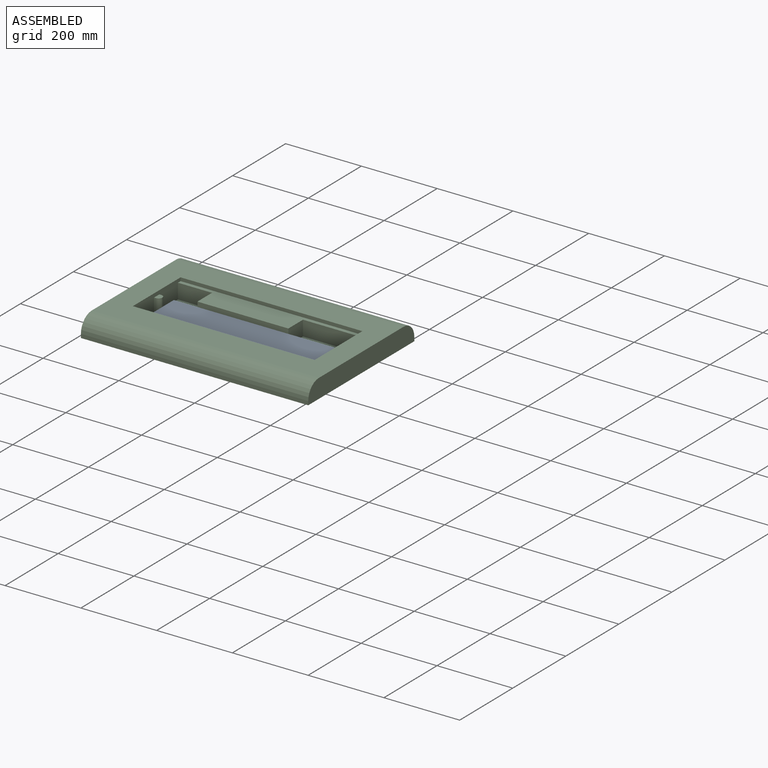
[diagram: assembled view]
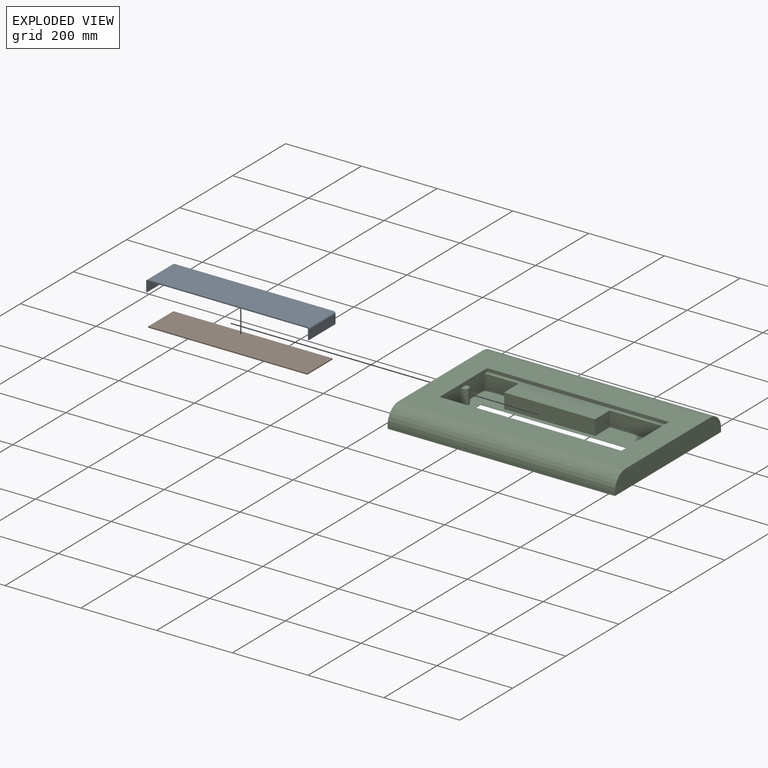
[diagram: exploded view]
GUIDED TOUR — MATED ASSEMBLY (Onshape document 325e85852f666d35549590d1, AutoMate assembly 325e85852f666d35549590d1_365f95b9f09e71062bb9f5e0_78d972769d479ff531b1773d_default)

This assembly has 3 components, labeled P0..P2 below (a component is one placed occurrence of a part; the same part can appear more than once), held together by 6 mates. A mate is a constraint between two components; its type names the relative motion it leaves free:
  PLANAR — leaves sliding in the plane through the listed point (normal = the listed direction) and rotation about that normal free.
Axis/direction vectors are unit vectors and 'through' points are millimeter coordinates, both in the assembly's world frame.

MATES
  1. PLANAR "Planar 6": P0 <-> P1, direction (-1.000, 0.000, 0.000) through (215.00, 20.00, 13.50) mm
  2. PLANAR "Planar 4": P0 <-> P2, direction (0.000, 0.000, -1.000) through (216.50, -30.00, 1.00) mm
  3. PLANAR "Planar 3": P1 <-> P2, direction (0.000, -1.000, 0.000) through (0.00, -75.00, 2.50) mm
  4. PLANAR "Planar 2": P1 <-> P2, direction (-1.000, 0.000, 0.000) through (-210.00, -27.50, 2.50) mm
  5. PLANAR "Planar 1": P1 <-> P2, direction (0.000, 0.000, -1.000) through (0.00, -27.50, 1.00) mm
  6. PLANAR "Planar 5": P0 <-> P2, direction (0.000, -1.000, 0.000) through (3.00, -80.00, 29.50) mm

ASSEMBLY ORDER
  1. P1 — the base component [order verified]
  2. P0 [order verified]
  3. P2 [order verified]
Order-tag legend:
  [order verified] — this step's position reverses a verified removal order: the component was checked to insert without passing through the ones already placed.

Of the 3 components, 2 carry the full construction recipe — the FeatureScript program that regenerates the part's solid from scratch; the rest are supplied as boundary geometry only.
Each toured component is shown spotlighted twice — in the assembled view, then in the exploded view, where a leader line traces a displaced component back to its assembled socket (saturated green if recipe-attached, orange if geometry-only; every other component desaturated gray) — followed by its recipe or geometry summary and the mates that hold it.
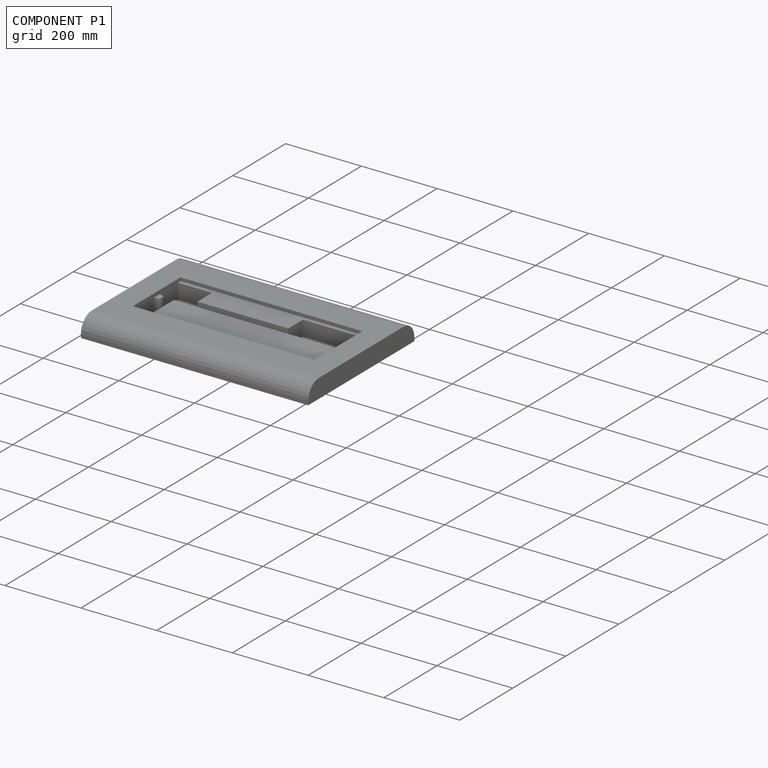
[diagram: component P1 — assembled]
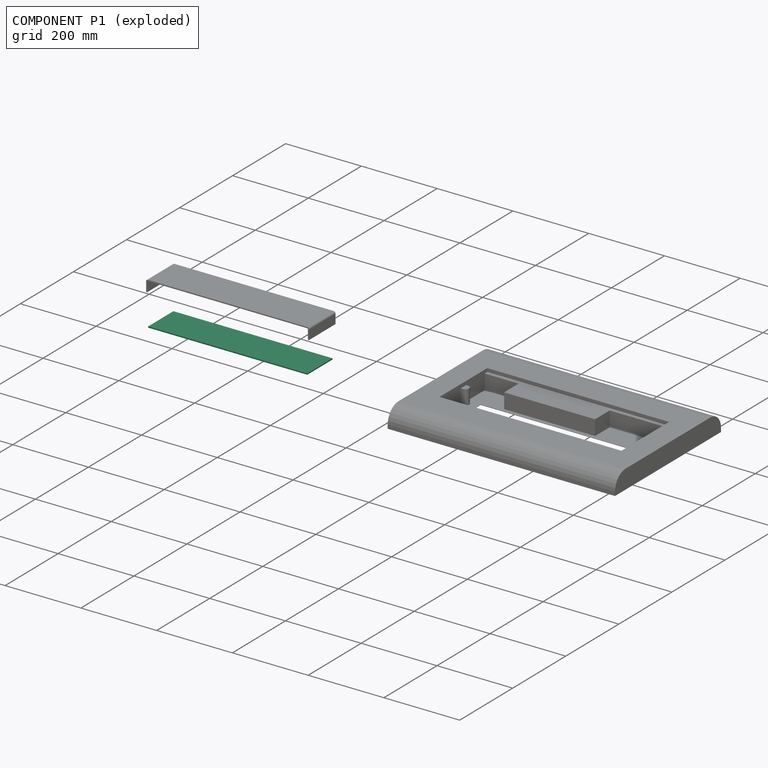
[diagram: component P1 — exploded]
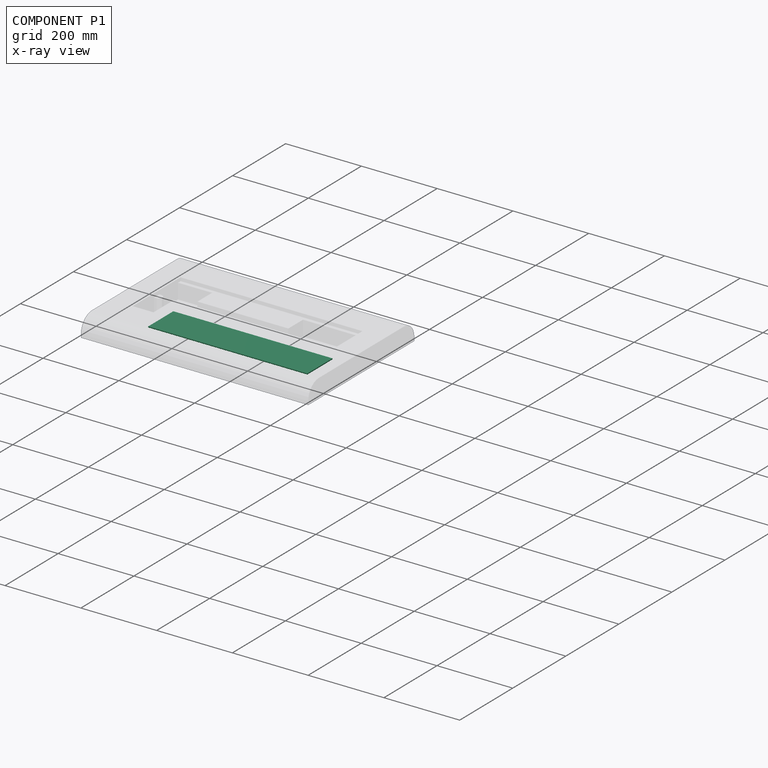
[diagram: component P1 — x-ray view]
COMPONENT P1 — recipe-attached (CADFS 00701564, mesh-verified: the recipe's output STEP matches this component's geometry to below the mesh-comparison resolution (tessellation chordal tolerance ~0.646 mm)).
Held by: PLANAR mate "Planar 6" to P0; PLANAR mate "Planar 3" to P2; PLANAR mate "Planar 2" to P2; PLANAR mate "Planar 1" to P2.
Construction recipe (FeatureScript — the CAD program that rebuilds this solid; sketch coordinates are in the units given by the * unit suffixes, e.g. mm):

FeatureScript 1511;
import(path : "onshape/std/geometry.fs", version : "1511.0");
import(path : "onshape/std/common.fs", version : "1511.0");
const mm = millimeter;
const VERTEX = EntityType.VERTEX;
const EDGE = EntityType.EDGE;
const FACE = EntityType.FACE;
const BODY = EntityType.BODY;
function v(x, y){return vector(x, y);}
function OD(order){return orderDisambiguation(order);}
function OSD(set){return originalSetDisambiguation(set);}
function TD(topology){return topologyDisambiguation(topology);}
function TDD(query){return trueDependencyDisambiguation(query);}
function sQuery(a, b, c) {return sketchEntityQuery(a, b, c);}

annotation { "Feature Type Name" : "Feature", "Feature Type Description" : "" }
export const myFeature = defineFeature(function(context is Context, id is Id, definition is map)
    precondition{}
    {
        {
            var Q0;
            Q0=qCreatedBy(makeId("Top.planeOp"),FACE);
            var sketch = newSketch(context, id + "F0", { "sketchPlane" : qUnion([Q0])});
            skLineSegment(sketch, "E0.bottom", {"start": v(210, 47.5) * mm, "end": v(-210, 47.5) * mm});
            skLineSegment(sketch, "E0.top", {"start": v(210, -47.5) * mm, "end": v(-210, -47.5) * mm});
            skLineSegment(sketch, "E0.left", {"start": v(210, 47.5) * mm, "end": v(210, -47.5) * mm});
            skLineSegment(sketch, "E0.right", {"start": v(-210, 47.5) * mm, "end": v(-210, -47.5) * mm});
            skPoint(sketch, "E0.middle", {"position": v(0, 0) * mm});
            skSolve(sketch);
        }
        {
            var Q0;
            Q0=makeQuery(id+"F0.imprint","IMPRINT",FACE,{"disambiguationData":[TD([[makeQuery(id+"F0.imprint","IMPRINT",EDGE,{"derivedFrom":sQuery(id+"F0.wireOp",EDGE,"E0.bottom")}),1.0]])]});
            extrude(context, id + "F1", {"entities" : qUnion([Q0]), "depth" : 3 * mm, "offsetDistance" : 25 * mm});
        }
    });
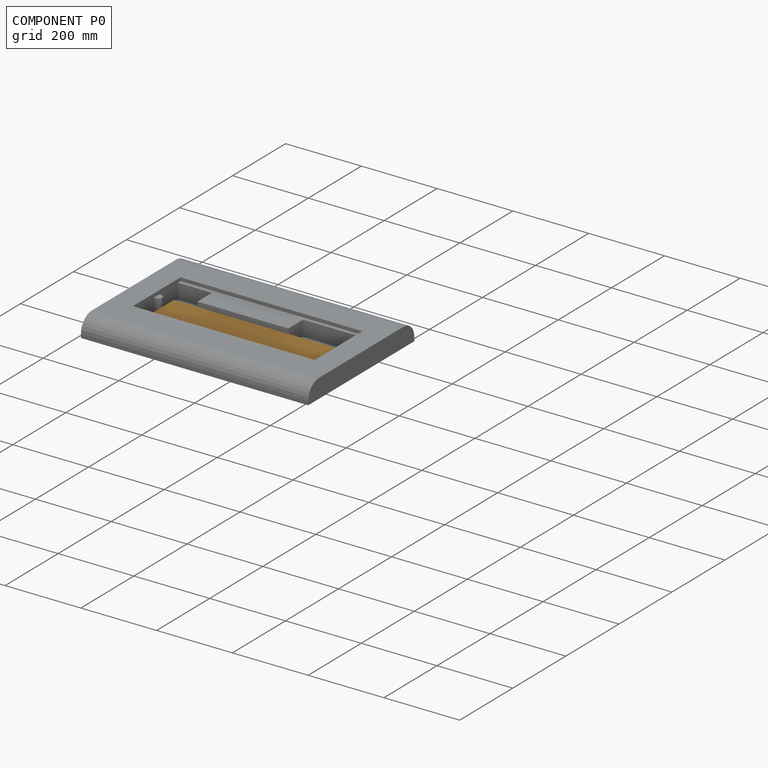
[diagram: component P0 — assembled]
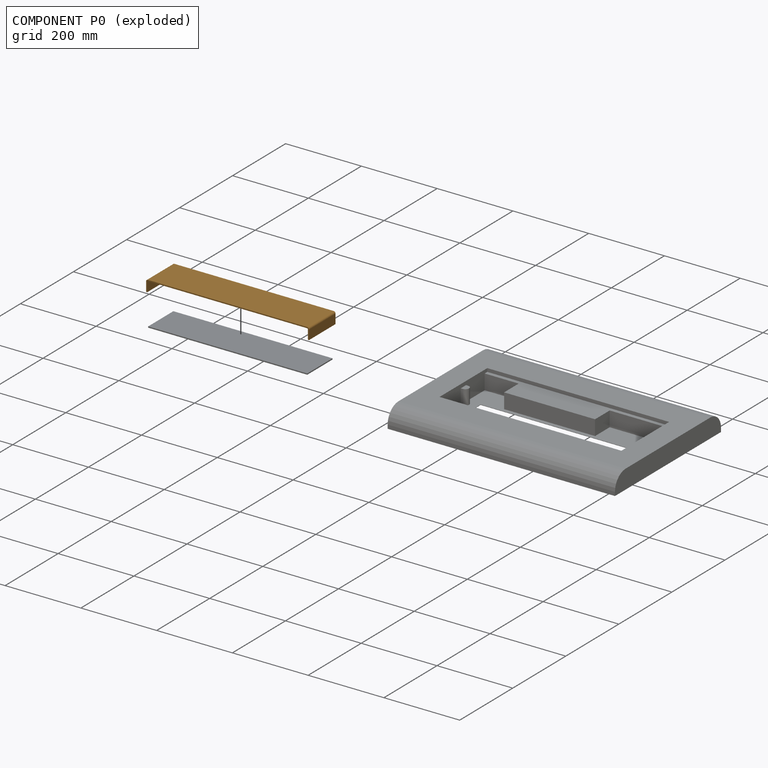
[diagram: component P0 — exploded]
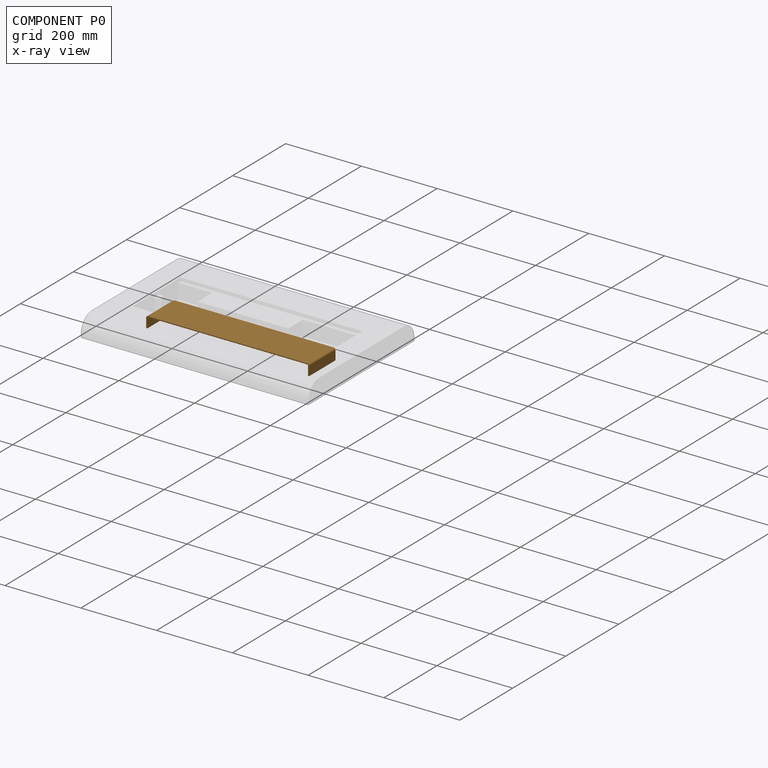
[diagram: component P0 — x-ray view]
COMPONENT P0 — geometry summary (no construction recipe available for this part):
  bounding box: 430.0 x 100.0 x 30.0 mm
  B-rep topology: 1 solid, 22 faces, 88 edges
  volume: 144299 mm^3 (11% of its bounding box)
  symmetry: 2-fold rotationally symmetric about the z axis; mirror-symmetric across its x mid-plane, y mid-plane
Held by: PLANAR mate "Planar 6" to P1; PLANAR mate "Planar 4" to P2; PLANAR mate "Planar 5" to P2.
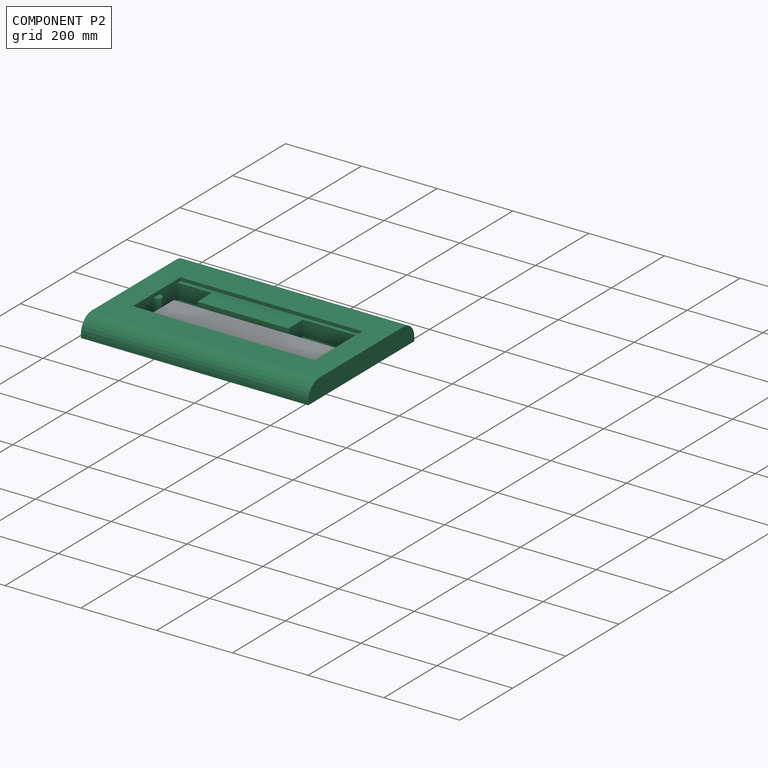
[diagram: component P2 — assembled]
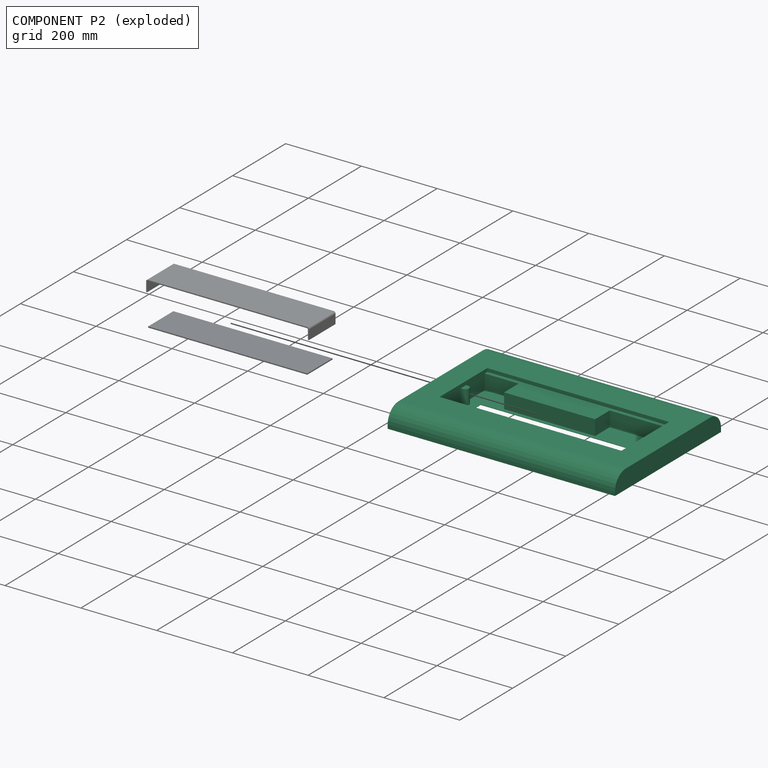
[diagram: component P2 — exploded]
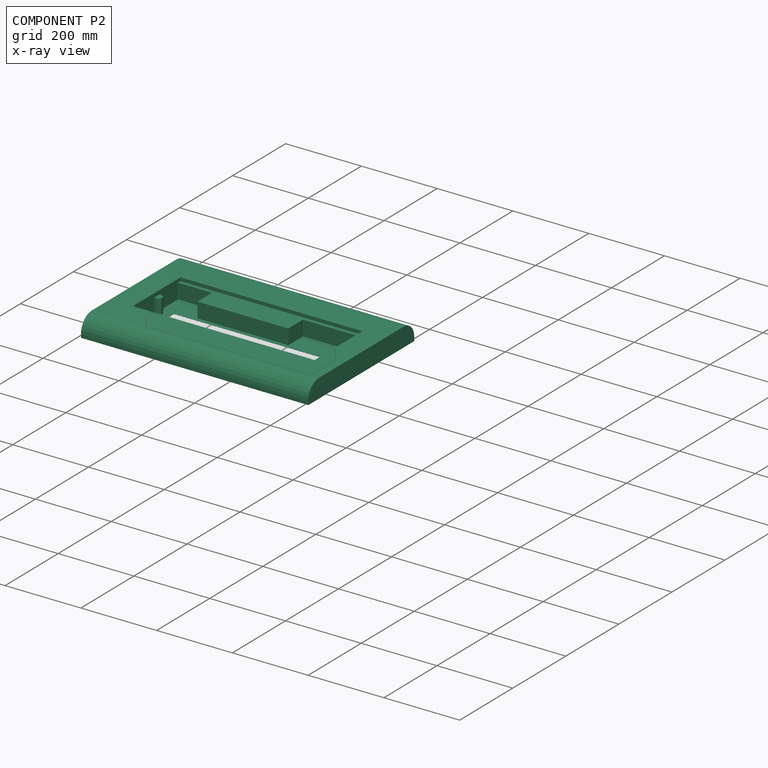
[diagram: component P2 — x-ray view]
COMPONENT P2 — recipe-attached (CADFS 00701563, mesh-verified: the recipe's output STEP matches this component's geometry to below the mesh-comparison resolution (tessellation chordal tolerance ~1.08 mm)).
Held by: PLANAR mate "Planar 4" to P0; PLANAR mate "Planar 3" to P1; PLANAR mate "Planar 2" to P1; PLANAR mate "Planar 1" to P1; PLANAR mate "Planar 5" to P0.
Construction recipe (FeatureScript — the CAD program that rebuilds this solid; sketch coordinates are in the units given by the * unit suffixes, e.g. mm):

FeatureScript 1511;
import(path : "onshape/std/geometry.fs", version : "1511.0");
import(path : "onshape/std/common.fs", version : "1511.0");
const mm = millimeter;
const VERTEX = EntityType.VERTEX;
const EDGE = EntityType.EDGE;
const FACE = EntityType.FACE;
const BODY = EntityType.BODY;
function v(x, y){return vector(x, y);}
function OD(order){return orderDisambiguation(order);}
function OSD(set){return originalSetDisambiguation(set);}
function TD(topology){return topologyDisambiguation(topology);}
function TDD(query){return trueDependencyDisambiguation(query);}
function sQuery(a, b, c) {return sketchEntityQuery(a, b, c);}

annotation { "Feature Type Name" : "Feature", "Feature Type Description" : "" }
export const myFeature = defineFeature(function(context is Context, id is Id, definition is map)
    precondition{}
    {
        {
            var Q0;
            Q0=qCreatedBy(makeId("Top.planeOp"),FACE);
            var sketch = newSketch(context, id + "F0", { "sketchPlane" : qUnion([Q0])});
            skLineSegment(sketch, "E0.bottom", {"start": v(300, 200) * mm, "end": v(-300, 200) * mm});
            skLineSegment(sketch, "E0.top", {"start": v(300, -200) * mm, "end": v(-300, -200) * mm});
            skLineSegment(sketch, "E0.left", {"start": v(300, 200) * mm, "end": v(300, -200) * mm});
            skLineSegment(sketch, "E0.right", {"start": v(-300, 200) * mm, "end": v(-300, -200) * mm});
            skPoint(sketch, "E0.middle", {"position": v(0, 0) * mm});
            skSolve(sketch);
        }
        {
            var Q0;
            Q0=makeQuery(id+"F0.imprint","IMPRINT",FACE,{"disambiguationData":[TD([[makeQuery(id+"F0.imprint","IMPRINT",EDGE,{"derivedFrom":sQuery(id+"F0.wireOp",EDGE,"E0.bottom")}),1.0]])]});
            extrude(context, id + "F1", {"entities" : qUnion([Q0]), "depth" : 50 * mm, "offsetDistance" : 25 * mm});
        }
        {
            var Q0;
            Q0=makeQuery(id+"F1.opExtrude","CAP_EDGE",EDGE,{"disambiguationData":[OSD([sQuery(id+"F0.wireOp",EDGE,"E0.top")])],"isStart":false});
            var Q1;
            Q1=makeQuery(id+"F1.opExtrude","CAP_EDGE",EDGE,{"disambiguationData":[OSD([sQuery(id+"F0.wireOp",EDGE,"E0.bottom")])],"isStart":false});
            fillet(context, id + "F2", {"entities" : qUnion([Q0, Q1]), "radius" : 40 * mm, "tangentPropagation" : true, "allowEdgeOverflow" : false});
        }
        {
            var Q0;
            Q0=makeQuery(id+"F1.opExtrude","CAP_FACE",FACE,{"disambiguationData":[OSD([sQuery(id+"F0.wireOp",EDGE,"E0.bottom"),sQuery(id+"F0.wireOp",EDGE,"E0.top"),sQuery(id+"F0.wireOp",EDGE,"E0.left"),sQuery(id+"F0.wireOp",EDGE,"E0.right")])],"isStart":false});
            var sketch = newSketch(context, id + "F3", { "sketchPlane" : qUnion([Q0])});
            skLineSegment(sketch, "E1.bottom", {"start": v(-240, 80) * mm, "end": v(240, 80) * mm});
            skLineSegment(sketch, "E1.top", {"start": v(-240, -80) * mm, "end": v(240, -80) * mm});
            skLineSegment(sketch, "E1.left", {"start": v(-240, 80) * mm, "end": v(-240, -80) * mm});
            skLineSegment(sketch, "E1.right", {"start": v(240, 80) * mm, "end": v(240, -80) * mm});
            skPoint(sketch, "E1.middle", {"position": v(0, 0) * mm});
            skSolve(sketch);
        }
        {
            var Q0;
            Q0=makeQuery(id+"F3.imprint","IMPRINT",FACE,{"disambiguationData":[TD([[makeQuery(id+"F3.imprint","IMPRINT",EDGE,{"derivedFrom":sQuery(id+"F3.wireOp",EDGE,"E1.bottom")}),-1.0]])]});
            extrude(context, id + "F4", {"entities" : qUnion([Q0]), "operationType" : NewBodyOperationType.REMOVE, "oppositeDirection" : true, "depth" : 49 * mm, "offsetDistance" : 25 * mm});
        }
        {
            var Q0;
            Q0=makeQuery(id+"F1.opExtrude","CAP_FACE",FACE,{"disambiguationData":[OSD([sQuery(id+"F0.wireOp",EDGE,"E0.bottom"),sQuery(id+"F0.wireOp",EDGE,"E0.top"),sQuery(id+"F0.wireOp",EDGE,"E0.left"),sQuery(id+"F0.wireOp",EDGE,"E0.right")])],"isStart":false});
            var sketch = newSketch(context, id + "F5", { "sketchPlane" : qUnion([Q0])});
            skLineSegment(sketch, "E2.bottom", {"start": v(-240, 90) * mm, "end": v(240, 90) * mm});
            skLineSegment(sketch, "E2.top", {"start": v(-240, -90) * mm, "end": v(240, -90) * mm});
            skLineSegment(sketch, "E2.left", {"start": v(-240, 90) * mm, "end": v(-240, -90) * mm});
            skLineSegment(sketch, "E2.right", {"start": v(240, 90) * mm, "end": v(240, -90) * mm});
            skPoint(sketch, "E2.middle", {"position": v(0, 0) * mm});
            skSolve(sketch);
        }
        {
            var Q0;
            {var subQ0=sQuery(id+"F5.wireOp",EDGE,"E2.bottom");Q0=makeQuery(id+"F5.imprint","IMPRINT",FACE,{"disambiguationData":[TD([[makeQuery(id+"F5.imprint","IMPRINT",EDGE,{"derivedFrom":subQ0}),-1.0]])]});}
            var Q1;
            {var subQ0=sQuery(id+"F5.wireOp",EDGE,"E2.top");Q1=makeQuery(id+"F5.imprint","IMPRINT",FACE,{"disambiguationData":[TD([[makeQuery(id+"F5.imprint","IMPRINT",EDGE,{"derivedFrom":subQ0}),1.0]])]});}
            extrude(context, id + "F6", {"entities" : qUnion([Q0, Q1]), "operationType" : NewBodyOperationType.REMOVE, "oppositeDirection" : true, "depth" : 9 * mm, "offsetDistance" : 25 * mm});
        }
        {
            var Q0;
            Q0=makeQuery(id+"F1.opExtrude","CAP_FACE",FACE,{"disambiguationData":[OSD([sQuery(id+"F0.wireOp",EDGE,"E0.bottom"),sQuery(id+"F0.wireOp",EDGE,"E0.top"),sQuery(id+"F0.wireOp",EDGE,"E0.left"),sQuery(id+"F0.wireOp",EDGE,"E0.right")])],"isStart":true});
            shell(context, id + "F7", {"entities" : qUnion([Q0]), "thickness" : 1 * mm});
        }
        {
            var Q0;
            Q0=makeQuery(id+"F4.boolean.opBoolean","COPY",FACE,{"derivedFrom":makeQuery(id+"F4.opExtrude","CAP_FACE",FACE,{"disambiguationData":[OSD([sQuery(id+"F3.wireOp",EDGE,"E1.bottom"),sQuery(id+"F3.wireOp",EDGE,"E1.top"),sQuery(id+"F3.wireOp",EDGE,"E1.left"),sQuery(id+"F3.wireOp",EDGE,"E1.right")])],"isStart":false})});
            var sketch = newSketch(context, id + "F8", { "sketchPlane" : qUnion([Q0])});
            skLineSegment(sketch, "E3.bottom", {"start": v(-205, 15) * mm, "end": v(205, 15) * mm});
            skLineSegment(sketch, "E3.top", {"start": v(-205, -70) * mm, "end": v(205, -70) * mm});
            skLineSegment(sketch, "E3.left", {"start": v(-205, 15) * mm, "end": v(-205, -70) * mm});
            skLineSegment(sketch, "E3.right", {"start": v(205, 15) * mm, "end": v(205, -70) * mm});
            skPoint(sketch, "E3.middle", {"position": v(0, -27.5) * mm});
            skSolve(sketch);
        }
        {
            var Q0;
            Q0=makeQuery(id+"F8.imprint","IMPRINT",FACE,{"disambiguationData":[TD([[makeQuery(id+"F8.imprint","IMPRINT",EDGE,{"derivedFrom":sQuery(id+"F8.wireOp",EDGE,"E3.bottom")}),-1.0]])]});
            extrude(context, id + "F9", {"entities" : qUnion([Q0]), "operationType" : NewBodyOperationType.REMOVE, "endBound" : BoundingType.THROUGH_ALL, "oppositeDirection" : true, "depth" : 25 * mm, "offsetDistance" : 25 * mm});
        }
        {
            var Q0;
            Q0=makeQuery(id+"F4.boolean.opBoolean","COPY",FACE,{"derivedFrom":makeQuery(id+"F4.opExtrude","CAP_FACE",FACE,{"disambiguationData":[OSD([sQuery(id+"F3.wireOp",EDGE,"E1.bottom"),sQuery(id+"F3.wireOp",EDGE,"E1.top"),sQuery(id+"F3.wireOp",EDGE,"E1.left"),sQuery(id+"F3.wireOp",EDGE,"E1.right")])],"isStart":false})});
            var sketch = newSketch(context, id + "F10", { "sketchPlane" : qUnion([Q0])});
            skLineSegment(sketch, "E4.bottom", {"start": v(90, 80) * mm, "end": v(-150, 80) * mm});
            skLineSegment(sketch, "E4.top", {"start": v(90, 25) * mm, "end": v(-150, 25) * mm});
            skLineSegment(sketch, "E4.left", {"start": v(90, 80) * mm, "end": v(90, 25) * mm});
            skLineSegment(sketch, "E4.right", {"start": v(-150, 80) * mm, "end": v(-150, 25) * mm});
            skPoint(sketch, "E4.middle", {"position": v(-30, 52.5) * mm});
            skSolve(sketch);
        }
        {
            var Q0;
            Q0=makeQuery(id+"F10.imprint","IMPRINT",FACE,{"disambiguationData":[TD([[makeQuery(id+"F10.imprint","IMPRINT",EDGE,{"derivedFrom":sQuery(id+"F10.wireOp",EDGE,"E4.bottom")}),-1.0]])]});
            extrude(context, id + "F11", {"entities" : qUnion([Q0]), "operationType" : NewBodyOperationType.ADD, "depth" : 40 * mm, "offsetDistance" : 25 * mm});
        }
        {
            var Q0;
            Q0=makeQuery(id+"F4.boolean.opBoolean","COPY",FACE,{"derivedFrom":makeQuery(id+"F4.opExtrude","CAP_FACE",FACE,{"disambiguationData":[OSD([sQuery(id+"F3.wireOp",EDGE,"E1.bottom"),sQuery(id+"F3.wireOp",EDGE,"E1.top"),sQuery(id+"F3.wireOp",EDGE,"E1.left"),sQuery(id+"F3.wireOp",EDGE,"E1.right")])],"isStart":false})});
            var sketch = newSketch(context, id + "F12", { "sketchPlane" : qUnion([Q0])});
            skArc(sketch, "E5", {"start": v(-235, -10) * mm, "mid": v(-225, 0) * mm, "end": v(-235, 10) * mm});
            skLineSegment(sketch, "E6", {"start": v(-240, -10) * mm, "end": v(-235, -10) * mm});
            skLineSegment(sketch, "E7", {"start": v(-235, 10) * mm, "end": v(-240, 10) * mm});
            skLineSegment(sketch, "E8", {"start": v(-240, 10) * mm, "end": v(-240, -10) * mm});
            skSolve(sketch);
        }
        {
            var Q0;
            Q0=makeQuery(id+"F12.imprint","IMPRINT",FACE,{"disambiguationData":[TD([[makeQuery(id+"F12.imprint","IMPRINT",EDGE,{"derivedFrom":sQuery(id+"F12.wireOp",EDGE,"E5")}),1.0]])]});
            extrude(context, id + "F13", {"entities" : qUnion([Q0]), "operationType" : NewBodyOperationType.ADD, "depth" : 39 * mm, "offsetDistance" : 25 * mm});
        }
    });
PROVENANCE & LICENSES
Assembly (occurrences, transforms, mates, per-part STEP geometry): AutoMate dataset, Zenodo record 7776208, CC0.
Construction recipes: CADFS (HuggingFace VladPyatov/CADFS, CC-BY-4.0, layered over the ABC dataset), FeatureScript reconstruction programs keyed by ABC model id.
Join: ABC meta listings map ABC model id -> Onshape documentId; within a shared document, parts are matched by geometric signature (bounding-box dims + volume at 0.1% relative tolerance, exact B-rep face/solid counts).
Verification: 2 of this assembly's 3 components carry a recipe attachment, and every attachment is mesh-verified: the CADFS STEP and the AutoMate member STEP were compared as meshes in their shared local frame (symmetric sampled-point-to-mesh distance); worst across the 2 attachments: below the mesh-comparison resolution (tessellation chordal tolerance ~1.08 mm) on a 723 mm part.
Renders: orthographic iso camera (az 35 / el 25); the floor grid conveys scale (grid pitch printed in each image; no ruler). In the exploded view each component is displaced by its stored offset vector: the offsets alone carry the explosion direction (mate normal/axis signs are not orientation cues and do not encode it), and separation distances are assigned per mate-chain, not proportionally to assembly-order depth.
